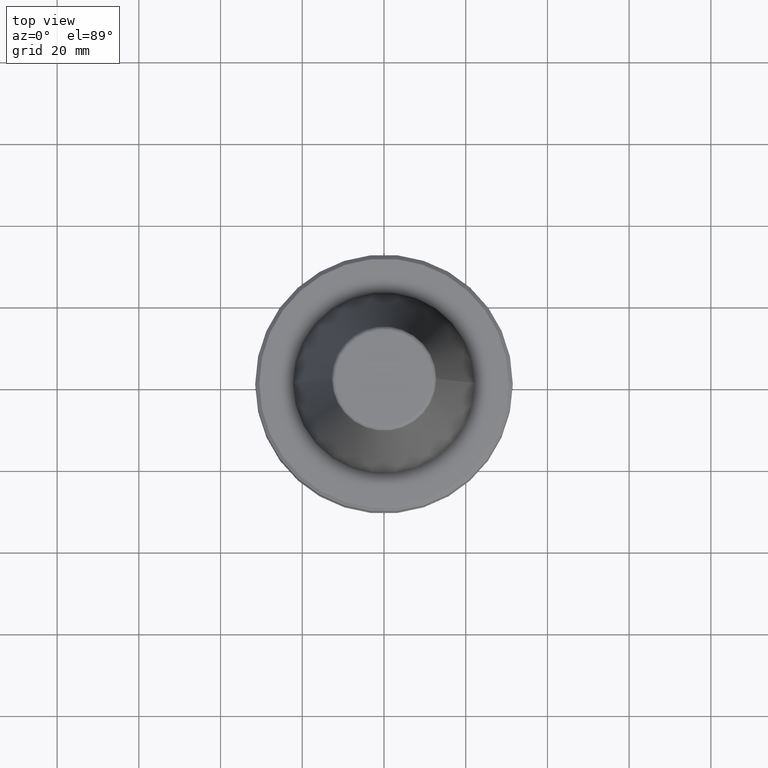
[diagram: clean part render]
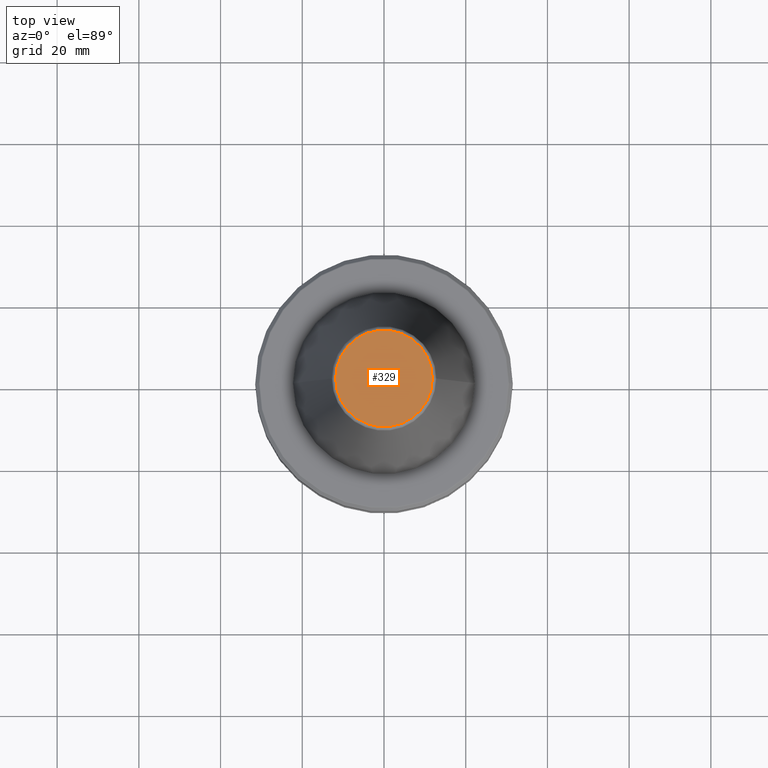
[diagram: same view with one face highlighted and labeled with its STEP entity id]
A machine part, top view. The second image highlights one B-rep face of the part: STEP entity #329.
In plain terms, the highlighted planar face has unit normal (0, -0, 1).
Its self-contained STEP definition (entity closure, byte-faithful):
#73 = ORIENTED_EDGE ( 'NONE', *, *, #342, .T. ) ;
#138 = AXIS2_PLACEMENT_3D ( 'NONE', #722, #1196, #816 ) ;
#207 = CARTESIAN_POINT ( 'NONE',  ( 0.0000000000000000000, 0.0000000000000000000, 65.40000000000000600 ) ) ;
#253 = DIRECTION ( 'NONE',  ( -0.0000000000000000000, -0.0000000000000000000, 1.000000000000000000 ) ) ;
#329 = ADVANCED_FACE ( 'NONE', ( #1065 ), #640, .T. ) ;
#342 = EDGE_CURVE ( 'NONE', #374, #980, #1030, .T. ) ;
#374 = VERTEX_POINT ( 'NONE', #765 ) ;
#418 = EDGE_LOOP ( 'NONE', ( #567, #73 ) ) ;
#470 = EDGE_CURVE ( 'NONE', #980, #374, #971, .T. ) ;
#517 = AXIS2_PLACEMENT_3D ( 'NONE', #1092, #714, #813 ) ;
#567 = ORIENTED_EDGE ( 'NONE', *, *, #470, .T. ) ;
#640 = PLANE ( 'NONE',  #138 ) ;
#696 = DIRECTION ( 'NONE',  ( 1.000000000000000000, 0.0000000000000000000, 0.0000000000000000000 ) ) ;
#714 = DIRECTION ( 'NONE',  ( -0.0000000000000000000, -0.0000000000000000000, 1.000000000000000000 ) ) ;
#722 = CARTESIAN_POINT ( 'NONE',  ( 0.0000000000000000000, 0.0000000000000000000, 65.40000000000000600 ) ) ;
#765 = CARTESIAN_POINT ( 'NONE',  ( -11.82266672057007100, 1.508450503654657300E-015, 65.40000000000000600 ) ) ;
#813 = DIRECTION ( 'NONE',  ( 1.000000000000000000, 0.0000000000000000000, 0.0000000000000000000 ) ) ;
#816 = DIRECTION ( 'NONE',  ( 1.000000000000000000, 0.0000000000000000000, 0.0000000000000000000 ) ) ;
#844 = CARTESIAN_POINT ( 'NONE',  ( 11.82266672057007100, 0.0000000000000000000, 65.40000000000000600 ) ) ;
#971 = CIRCLE ( 'NONE', #517, 11.82266672057007100 ) ;
#980 = VERTEX_POINT ( 'NONE', #844 ) ;
#1030 = CIRCLE ( 'NONE', #1035, 11.82266672057007100 ) ;
#1035 = AXIS2_PLACEMENT_3D ( 'NONE', #207, #253, #696 ) ;
#1065 = FACE_OUTER_BOUND ( 'NONE', #418, .T. ) ;
#1092 = CARTESIAN_POINT ( 'NONE',  ( 0.0000000000000000000, 0.0000000000000000000, 65.40000000000000600 ) ) ;
#1196 = DIRECTION ( 'NONE',  ( 0.0000000000000000000, -0.0000000000000000000, 1.000000000000000000 ) ) ;